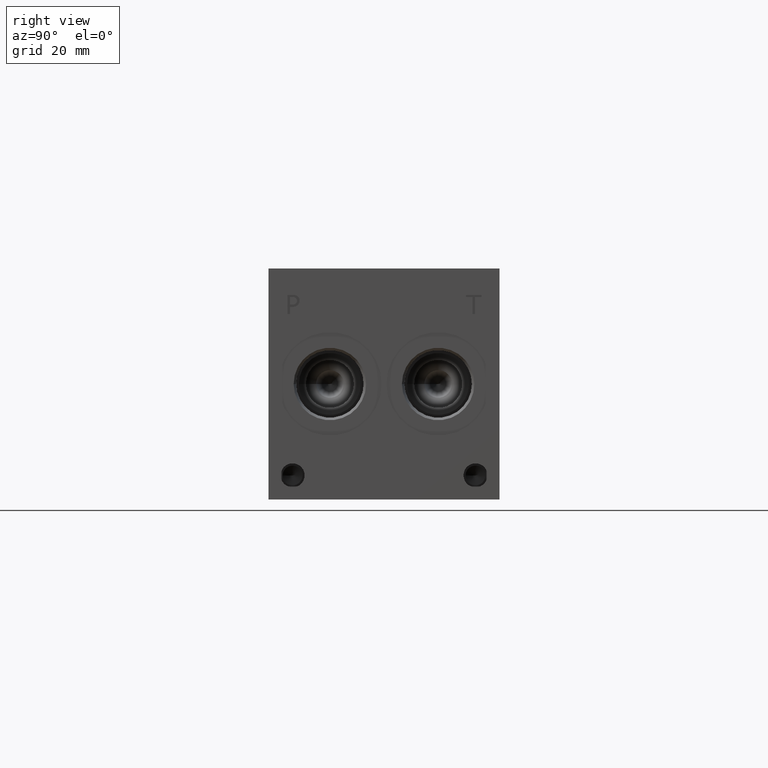
[diagram: clean part render]
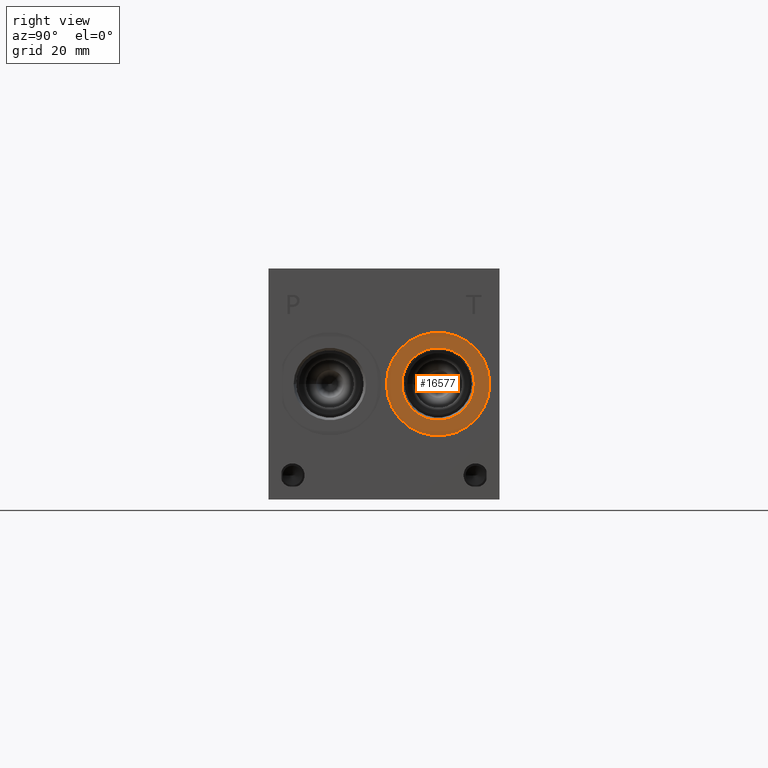
[diagram: same view with one face highlighted and labeled with its STEP entity id]
A machine part, right view. The second image highlights one B-rep face of the part: STEP entity #16577.
In plain terms, the highlighted planar face has unit normal (1, 0, 0).
Its self-contained STEP definition (entity closure, byte-faithful):
#497=CIRCLE('',#17511,17.0688);
#498=CIRCLE('',#17512,17.0688);
#499=CIRCLE('',#17513,11.9507);
#839=FACE_BOUND('',#3206,.T.);
#2235=FACE_OUTER_BOUND('',#3205,.T.);
#3205=EDGE_LOOP('',(#14080,#14081));
#3206=EDGE_LOOP('',(#14082));
#7591=VERTEX_POINT('',#28322);
#7592=VERTEX_POINT('',#28323);
#7593=VERTEX_POINT('',#28326);
#9837=EDGE_CURVE('',#7591,#7592,#497,.T.);
#9838=EDGE_CURVE('',#7592,#7591,#498,.T.);
#9839=EDGE_CURVE('',#7593,#7593,#499,.T.);
#14080=ORIENTED_EDGE('',*,*,#9837,.T.);
#14081=ORIENTED_EDGE('',*,*,#9838,.T.);
#14082=ORIENTED_EDGE('',*,*,#9839,.F.);
#15260=PLANE('',#17510);
#16577=ADVANCED_FACE('',(#2235,#839),#15260,.T.);
#17510=AXIS2_PLACEMENT_3D('',#28321,#20747,#20748);
#17511=AXIS2_PLACEMENT_3D('',#28324,#20749,#20750);
#17512=AXIS2_PLACEMENT_3D('',#28325,#20751,#20752);
#17513=AXIS2_PLACEMENT_3D('',#28327,#20753,#20754);
#20747=DIRECTION('center_axis',(1.,0.,0.));
#20748=DIRECTION('ref_axis',(0.,1.,0.));
#20749=DIRECTION('center_axis',(1.,0.,0.));
#20750=DIRECTION('ref_axis',(0.,1.,0.));
#20751=DIRECTION('center_axis',(1.,0.,0.));
#20752=DIRECTION('ref_axis',(0.,1.,0.));
#20753=DIRECTION('center_axis',(1.,0.,0.));
#20754=DIRECTION('ref_axis',(0.,1.,0.));
#28321=CARTESIAN_POINT('Origin',(215.1126,55.9562,38.1));
#28322=CARTESIAN_POINT('',(215.1126,73.025,38.1));
#28323=CARTESIAN_POINT('',(215.1126,38.8874,38.1));
#28324=CARTESIAN_POINT('Origin',(215.1126,55.9562,38.1));
#28325=CARTESIAN_POINT('Origin',(215.1126,55.9562,38.1));
#28326=CARTESIAN_POINT('',(215.1126,44.0055,38.1));
#28327=CARTESIAN_POINT('Origin',(215.1126,55.9562,38.1));